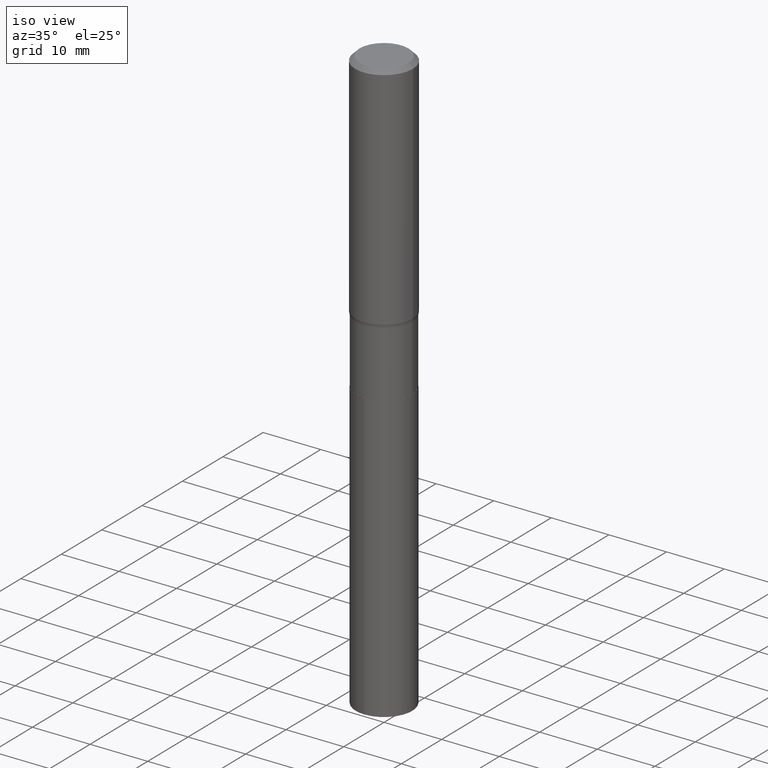
[diagram: clean part render]
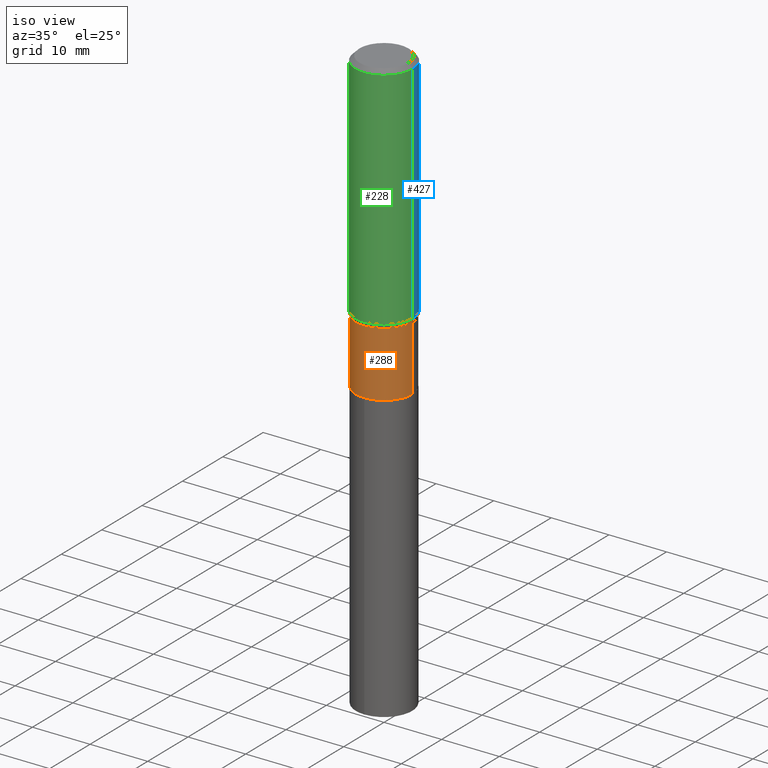
[diagram: same view with three faces highlighted in distinct colors, each labeled with its STEP entity id]
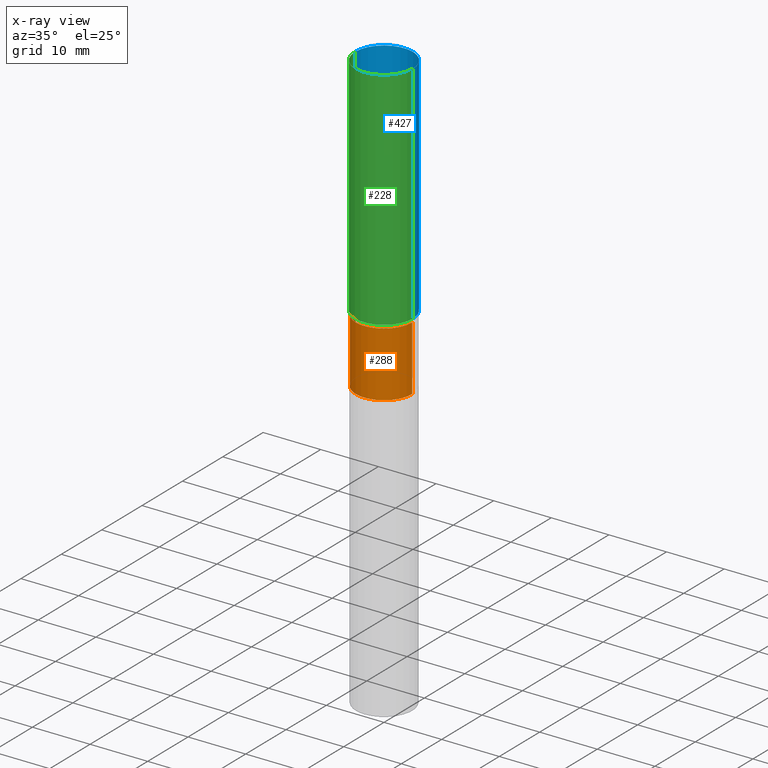
[diagram: x-ray of the same camera — body ghosted, the three highlighted faces saturated]
A machine part, iso view with three faces highlighted in distinct colors.
The next image is the same camera in x-ray (body ghosted, the three faces saturated) — at least one of them is partly hidden behind the body in this view.
Their STEP definitions:

[orange] entity #288 — the highlighted cylindrical surface (edge-blend (fillet) strip) has radius 4.8997 mm, axis along (-0, 0, 1).
#5 = CARTESIAN_POINT ( 'NONE',  ( 3.901990027149005041E-29, -5.571007624258123859E-15, -1.595600000000000351 ) ) ;
#22 = EDGE_CURVE ( 'NONE', #254, #371, #113, .T. ) ;
#32 = ORIENTED_EDGE ( 'NONE', *, *, #478, .F. ) ;
#54 = VECTOR ( 'NONE', #189, 39.37007874015748143 ) ;
#61 = CARTESIAN_POINT ( 'NONE',  ( 0.1928999999999999049, -6.918021124783804133E-15, -1.595600000000000351 ) ) ;
#76 = CARTESIAN_POINT ( 'NONE',  ( 0.000000000000000000, 0.000000000000000000, 0.000000000000000000 ) ) ;
#84 = DIRECTION ( 'NONE',  ( -2.445468806185136877E-29, 3.491481338843145188E-15, 1.000000000000000000 ) ) ;
#113 = LINE ( 'NONE', #459, #54 ) ;
#123 = EDGE_LOOP ( 'NONE', ( #32, #218, #466, #456 ) ) ;
#130 = FACE_OUTER_BOUND ( 'NONE', #123, .T. ) ;
#139 = AXIS2_PLACEMENT_3D ( 'NONE', #5, #457, #193 ) ;
#189 = DIRECTION ( 'NONE',  ( -2.445468806185136877E-29, 3.491481338843145188E-15, 1.000000000000000000 ) ) ;
#192 = CIRCLE ( 'NONE', #390, 0.1928999999999999881 ) ;
#193 = DIRECTION ( 'NONE',  ( 1.000000000000000000, -6.982962677686267499E-15, 0.000000000000000000 ) ) ;
#199 = DIRECTION ( 'NONE',  ( -2.445468806185136597E-29, 3.491481338843145583E-15, 1.000000000000000000 ) ) ;
#218 = ORIENTED_EDGE ( 'NONE', *, *, #243, .T. ) ;
#226 = DIRECTION ( 'NONE',  ( -2.445468806185136597E-29, 3.491481338843145583E-15, 1.000000000000000000 ) ) ;
#240 = CARTESIAN_POINT ( 'NONE',  ( 0.1928999999999999881, -8.465445654159086427E-15, -2.038800000000000168 ) ) ;
#243 = EDGE_CURVE ( 'NONE', #389, #254, #192, .T. ) ;
#248 = CARTESIAN_POINT ( 'NONE',  ( -0.1928999999999999049, -4.974082951664532029E-15, -1.595600000000000351 ) ) ;
#254 = VERTEX_POINT ( 'NONE', #240 ) ;
#258 = DIRECTION ( 'NONE',  ( 1.000000000000000000, -6.982962677686267499E-15, 4.876176775795936353E-29 ) ) ;
#288 = ADVANCED_FACE ( 'NONE', ( #130 ), #455, .T. ) ;
#291 = VECTOR ( 'NONE', #84, 39.37007874015748143 ) ;
#305 = EDGE_CURVE ( 'NONE', #489, #371, #408, .T. ) ;
#317 = CARTESIAN_POINT ( 'NONE',  ( 4.985821802050256763E-29, -7.118432153633405364E-15, -2.038800000000000168 ) ) ;
#321 = CARTESIAN_POINT ( 'NONE',  ( -0.1928999999999999326, 1.370636937281232780E-15, -9.488625789101710361E-30 ) ) ;
#371 = VERTEX_POINT ( 'NONE', #61 ) ;
#389 = VERTEX_POINT ( 'NONE', #401 ) ;
#390 = AXIS2_PLACEMENT_3D ( 'NONE', #317, #199, #435 ) ;
#401 = CARTESIAN_POINT ( 'NONE',  ( -0.1928999999999999881, -4.974082951664532029E-15, -2.038800000000000168 ) ) ;
#408 = CIRCLE ( 'NONE', #139, 0.1928999999999999049 ) ;
#435 = DIRECTION ( 'NONE',  ( 1.000000000000000000, -6.982962677686269077E-15, 0.000000000000000000 ) ) ;
#439 = LINE ( 'NONE', #321, #291 ) ;
#455 = CYLINDRICAL_SURFACE ( 'NONE', #470, 0.1928999999999999326 ) ;
#456 = ORIENTED_EDGE ( 'NONE', *, *, #305, .F. ) ;
#457 = DIRECTION ( 'NONE',  ( -2.445468806185136597E-29, 3.491481338843145583E-15, 1.000000000000000000 ) ) ;
#459 = CARTESIAN_POINT ( 'NONE',  ( 0.1928999999999999326, -1.347013500525680471E-15, 9.406145000510357801E-30 ) ) ;
#466 = ORIENTED_EDGE ( 'NONE', *, *, #22, .T. ) ;
#470 = AXIS2_PLACEMENT_3D ( 'NONE', #76, #226, #258 ) ;
#478 = EDGE_CURVE ( 'NONE', #389, #489, #439, .T. ) ;
#489 = VERTEX_POINT ( 'NONE', #248 ) ;

[blue] entity #427 — the highlighted cylindrical surface (edge-blend (fillet) strip) has radius 5 mm, axis along (-0, 0, 1).
#24 = CIRCLE ( 'NONE', #252, 0.1968500000000002470 ) ;
#33 = EDGE_LOOP ( 'NONE', ( #50, #451, #328, #491 ) ) ;
#50 = ORIENTED_EDGE ( 'NONE', *, *, #316, .T. ) ;
#91 = CARTESIAN_POINT ( 'NONE',  ( 7.220858017463213864E-31, -1.030947152326917226E-16, -0.02952750000000021330 ) ) ;
#98 = VECTOR ( 'NONE', #211, 39.37007874015748143 ) ;
#111 = CARTESIAN_POINT ( 'NONE',  ( -0.1968500000000000250, -1.395564769284339934E-15, -0.02952750000000021330 ) ) ;
#114 = CARTESIAN_POINT ( 'NONE',  ( -0.1968500000000002470, -4.086738198679745970E-15, -1.571092909189378828 ) ) ;
#131 = LINE ( 'NONE', #481, #98 ) ;
#144 = CIRCLE ( 'NONE', #255, 0.1968500000000000250 ) ;
#149 = DIRECTION ( 'NONE',  ( -2.445468806185136597E-29, 3.491481338843145583E-15, 1.000000000000000000 ) ) ;
#164 = CARTESIAN_POINT ( 'NONE',  ( 0.1968500000000002470, -6.860037777126047733E-15, -1.571092909189378828 ) ) ;
#187 = VERTEX_POINT ( 'NONE', #114 ) ;
#188 = CARTESIAN_POINT ( 'NONE',  ( 3.842058701041283237E-29, -5.485441574023504547E-15, -1.571092909189378828 ) ) ;
#194 = LINE ( 'NONE', #307, #383 ) ;
#211 = DIRECTION ( 'NONE',  ( -2.445468806185136877E-29, 3.491481338843145188E-15, 1.000000000000000000 ) ) ;
#224 = EDGE_CURVE ( 'NONE', #187, #227, #194, .T. ) ;
#227 = VERTEX_POINT ( 'NONE', #111 ) ;
#235 = VERTEX_POINT ( 'NONE', #164 ) ;
#241 = FACE_OUTER_BOUND ( 'NONE', #33, .T. ) ;
#252 = AXIS2_PLACEMENT_3D ( 'NONE', #188, #149, #464 ) ;
#255 = AXIS2_PLACEMENT_3D ( 'NONE', #91, #361, #270 ) ;
#266 = CARTESIAN_POINT ( 'NONE',  ( 0.1968500000000000250, -1.477690918335233294E-15, -0.02952750000000021330 ) ) ;
#270 = DIRECTION ( 'NONE',  ( 1.000000000000000000, -6.982962677686265922E-15, 0.000000000000000000 ) ) ;
#272 = DIRECTION ( 'NONE',  ( -2.445468806185136877E-29, 3.491481338843145188E-15, 1.000000000000000000 ) ) ;
#307 = CARTESIAN_POINT ( 'NONE',  ( -0.1968500000000001082, 1.398703375343757985E-15, -9.682923725166787881E-30 ) ) ;
#316 = EDGE_CURVE ( 'NONE', #235, #187, #24, .T. ) ;
#328 = ORIENTED_EDGE ( 'NONE', *, *, #423, .F. ) ;
#337 = VERTEX_POINT ( 'NONE', #266 ) ;
#347 = AXIS2_PLACEMENT_3D ( 'NONE', #429, #407, #368 ) ;
#355 = CYLINDRICAL_SURFACE ( 'NONE', #347, 0.1968500000000001082 ) ;
#361 = DIRECTION ( 'NONE',  ( -2.445468806185136597E-29, 3.491481338843145583E-15, 1.000000000000000000 ) ) ;
#368 = DIRECTION ( 'NONE',  ( 1.000000000000000000, -6.982962677686266711E-15, 4.876176775795935793E-29 ) ) ;
#377 = EDGE_CURVE ( 'NONE', #235, #337, #131, .T. ) ;
#383 = VECTOR ( 'NONE', #272, 39.37007874015748143 ) ;
#407 = DIRECTION ( 'NONE',  ( -2.445468806185136597E-29, 3.491481338843145583E-15, 1.000000000000000000 ) ) ;
#423 = EDGE_CURVE ( 'NONE', #337, #227, #144, .T. ) ;
#427 = ADVANCED_FACE ( 'NONE', ( #241 ), #355, .T. ) ;
#429 = CARTESIAN_POINT ( 'NONE',  ( 0.000000000000000000, 0.000000000000000000, 0.000000000000000000 ) ) ;
#451 = ORIENTED_EDGE ( 'NONE', *, *, #224, .T. ) ;
#464 = DIRECTION ( 'NONE',  ( 1.000000000000000000, -6.982962677686265133E-15, 0.000000000000000000 ) ) ;
#481 = CARTESIAN_POINT ( 'NONE',  ( 0.1968500000000001082, -1.374596203102542397E-15, 9.598753983154305062E-30 ) ) ;
#491 = ORIENTED_EDGE ( 'NONE', *, *, #377, .F. ) ;

[green] entity #228 — the highlighted cylindrical surface (edge-blend (fillet) strip) has radius 5 mm, axis along (-0, 0, 1).
#1 = CIRCLE ( 'NONE', #356, 0.1968500000000000250 ) ;
#20 = DIRECTION ( 'NONE',  ( 1.000000000000000000, -6.982962677686265922E-15, 0.000000000000000000 ) ) ;
#70 = CIRCLE ( 'NONE', #163, 0.1968500000000002470 ) ;
#83 = CARTESIAN_POINT ( 'NONE',  ( 0.000000000000000000, 0.000000000000000000, 0.000000000000000000 ) ) ;
#89 = DIRECTION ( 'NONE',  ( -2.445468806185136597E-29, 3.491481338843145583E-15, 1.000000000000000000 ) ) ;
#96 = CARTESIAN_POINT ( 'NONE',  ( 7.220858017463213864E-31, -1.030947152326917226E-16, -0.02952750000000021330 ) ) ;
#98 = VECTOR ( 'NONE', #211, 39.37007874015748143 ) ;
#111 = CARTESIAN_POINT ( 'NONE',  ( -0.1968500000000000250, -1.395564769284339934E-15, -0.02952750000000021330 ) ) ;
#114 = CARTESIAN_POINT ( 'NONE',  ( -0.1968500000000002470, -4.086738198679745970E-15, -1.571092909189378828 ) ) ;
#131 = LINE ( 'NONE', #481, #98 ) ;
#133 = EDGE_CURVE ( 'NONE', #227, #337, #1, .T. ) ;
#156 = EDGE_LOOP ( 'NONE', ( #424, #344, #340, #313 ) ) ;
#163 = AXIS2_PLACEMENT_3D ( 'NONE', #323, #89, #247 ) ;
#164 = CARTESIAN_POINT ( 'NONE',  ( 0.1968500000000002470, -6.860037777126047733E-15, -1.571092909189378828 ) ) ;
#187 = VERTEX_POINT ( 'NONE', #114 ) ;
#194 = LINE ( 'NONE', #307, #383 ) ;
#211 = DIRECTION ( 'NONE',  ( -2.445468806185136877E-29, 3.491481338843145188E-15, 1.000000000000000000 ) ) ;
#224 = EDGE_CURVE ( 'NONE', #187, #227, #194, .T. ) ;
#227 = VERTEX_POINT ( 'NONE', #111 ) ;
#228 = ADVANCED_FACE ( 'NONE', ( #472 ), #430, .T. ) ;
#235 = VERTEX_POINT ( 'NONE', #164 ) ;
#247 = DIRECTION ( 'NONE',  ( 1.000000000000000000, -6.982962677686265133E-15, 0.000000000000000000 ) ) ;
#266 = CARTESIAN_POINT ( 'NONE',  ( 0.1968500000000000250, -1.477690918335233294E-15, -0.02952750000000021330 ) ) ;
#269 = DIRECTION ( 'NONE',  ( -2.445468806185136597E-29, 3.491481338843145583E-15, 1.000000000000000000 ) ) ;
#272 = DIRECTION ( 'NONE',  ( -2.445468806185136877E-29, 3.491481338843145188E-15, 1.000000000000000000 ) ) ;
#276 = EDGE_CURVE ( 'NONE', #187, #235, #70, .T. ) ;
#307 = CARTESIAN_POINT ( 'NONE',  ( -0.1968500000000001082, 1.398703375343757985E-15, -9.682923725166787881E-30 ) ) ;
#313 = ORIENTED_EDGE ( 'NONE', *, *, #133, .F. ) ;
#314 = DIRECTION ( 'NONE',  ( -2.445468806185136597E-29, 3.491481338843145583E-15, 1.000000000000000000 ) ) ;
#323 = CARTESIAN_POINT ( 'NONE',  ( 3.842058701041283237E-29, -5.485441574023504547E-15, -1.571092909189378828 ) ) ;
#324 = AXIS2_PLACEMENT_3D ( 'NONE', #83, #269, #398 ) ;
#337 = VERTEX_POINT ( 'NONE', #266 ) ;
#340 = ORIENTED_EDGE ( 'NONE', *, *, #377, .T. ) ;
#344 = ORIENTED_EDGE ( 'NONE', *, *, #276, .T. ) ;
#356 = AXIS2_PLACEMENT_3D ( 'NONE', #96, #314, #20 ) ;
#377 = EDGE_CURVE ( 'NONE', #235, #337, #131, .T. ) ;
#383 = VECTOR ( 'NONE', #272, 39.37007874015748143 ) ;
#398 = DIRECTION ( 'NONE',  ( 1.000000000000000000, -6.982962677686266711E-15, 4.876176775795935793E-29 ) ) ;
#424 = ORIENTED_EDGE ( 'NONE', *, *, #224, .F. ) ;
#430 = CYLINDRICAL_SURFACE ( 'NONE', #324, 0.1968500000000001082 ) ;
#472 = FACE_OUTER_BOUND ( 'NONE', #156, .T. ) ;
#481 = CARTESIAN_POINT ( 'NONE',  ( 0.1968500000000001082, -1.374596203102542397E-15, 9.598753983154305062E-30 ) ) ;